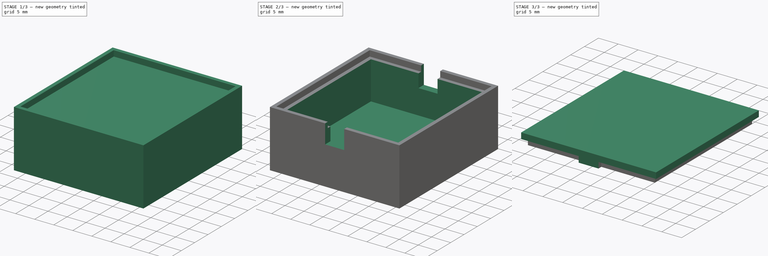
[diagram: build sequence overview — one tinted view per stage of 3, left to right]
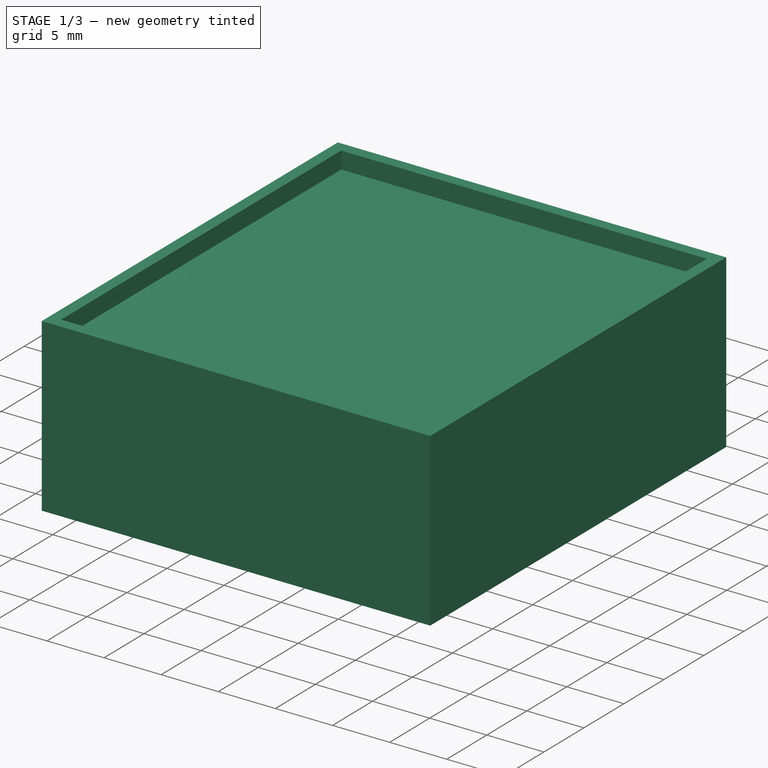
[diagram: stage 1 of 3 — iso view after this stage's code; geometry added in this stage tinted green]
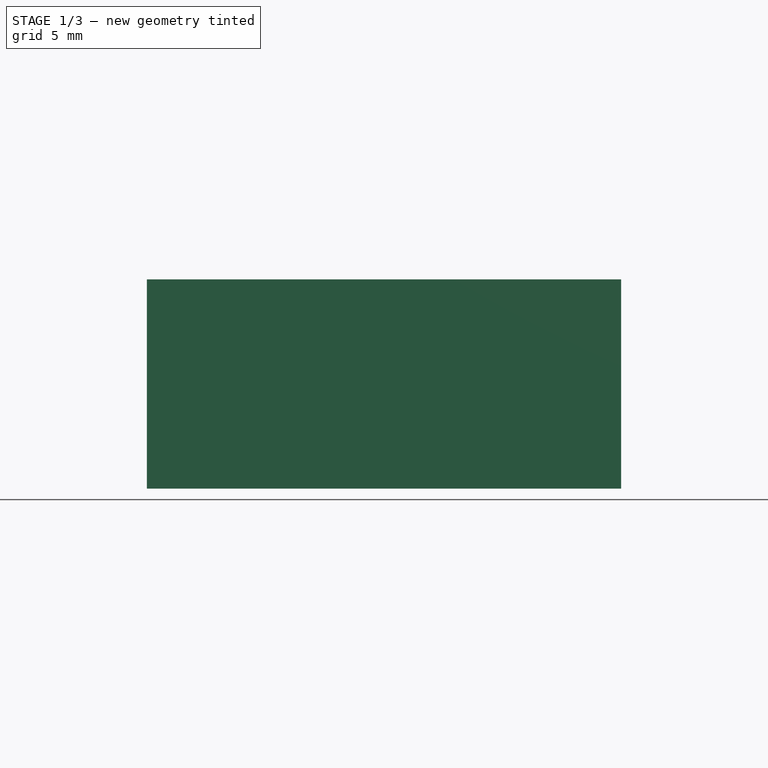
[diagram: stage 1 of 3 — front view after this stage's code; geometry added in this stage tinted green]
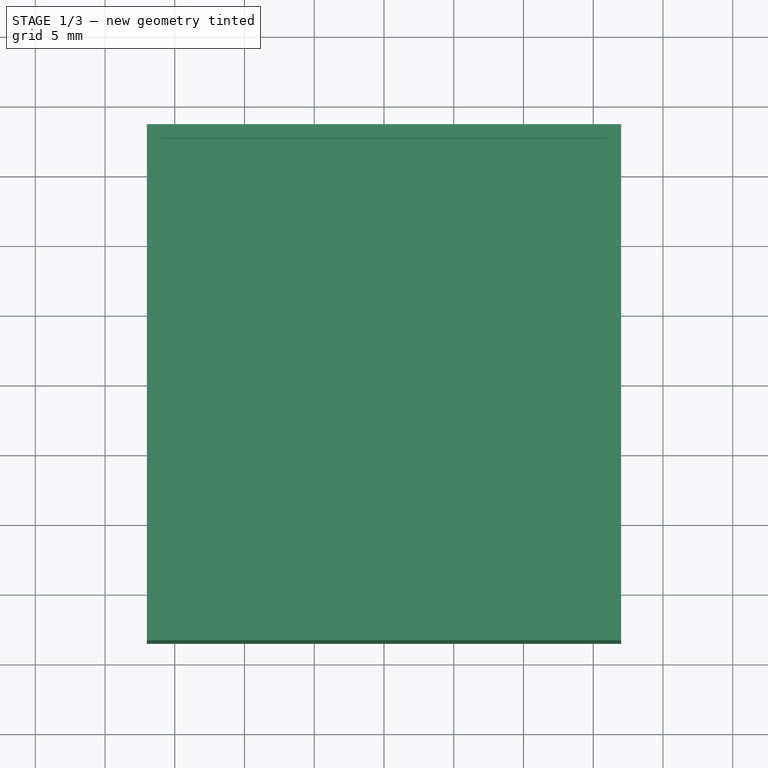
[diagram: stage 1 of 3 — top view after this stage's code; geometry added in this stage tinted green]
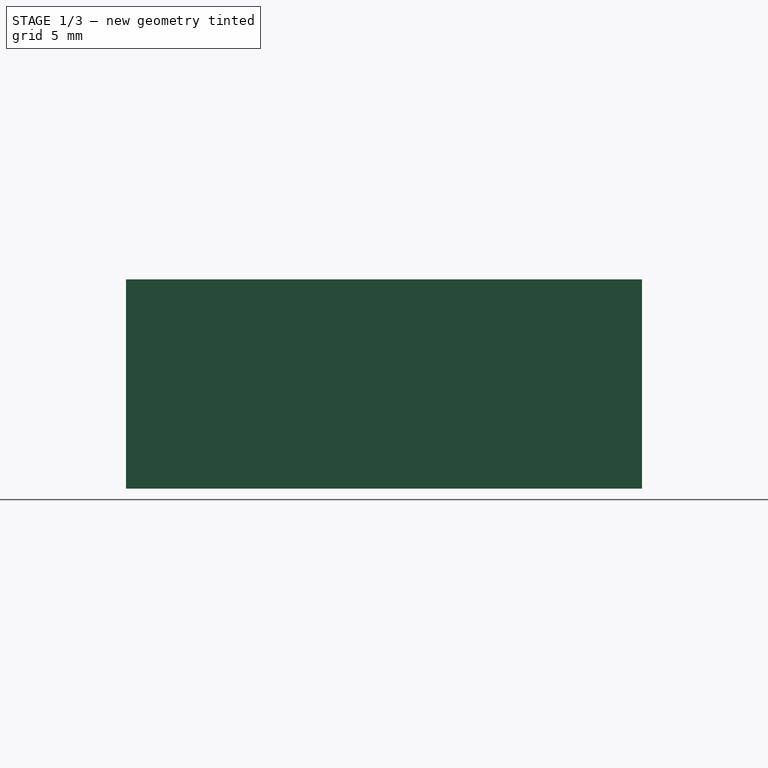
[diagram: stage 1 of 3 — right view after this stage's code; geometry added in this stage tinted green]
FCSTD DOCUMENT  (FreeCAD 0.16R)
Label: EspCase
License: All rights reserved
LicenseURL: http://en.wikipedia.org/wiki/All_rights_reserved
objects: Sketcher::SketchObject×5, PartDesign::Pocket×3, PartDesign::Pad×2, Part::Cut×1
note: 16 computed .brp shape members not serialized (recipe doc carries the construction recipe); baked Part::Feature solids carry a one-line shape summary decoded from their .brp

FEATURE [Sketcher::SketchObject] Sketch
  sketch-geometry (4):
    g0: LineSegment StartX=-17 StartY=18.5 StartZ=0 EndX=17 EndY=18.5 EndZ=0
    g1: LineSegment StartX=17 StartY=18.5 StartZ=0 EndX=17 EndY=-18.5 EndZ=0
    g2: LineSegment StartX=17 StartY=-18.5 StartZ=0 EndX=-17 EndY=-18.5 EndZ=0
    g3: LineSegment StartX=-17 StartY=-18.5 StartZ=0 EndX=-17 EndY=18.5 EndZ=0
  constraints (11):
    c: Coincident(g0,g1)
    c: Coincident(g1,g2)
    c: Coincident(g2,g3)
    c: Coincident(g3,g0)
    c: Horizontal(g0)
    c: Horizontal(g2)
    c: Vertical(g1)
    c: Vertical(g3)
    c: DistanceY(g1,g1) = 37
    c: DistanceX(g0,g0) = 34
    c: Symmetric(g0,g2,g-1)
FEATURE [PartDesign::Pad] Pad
  Length = 15
  Length2 = 100
  Sketch = -> Sketch
  Type = 0
FEATURE [Sketcher::SketchObject] Sketch001
  Placement = pos=(0,0,15) rot=(0,0,1;0rad)
  Support = -> Pad [Face6]
  sketch-geometry (4):
    g0: LineSegment StartX=-16 StartY=17.5 StartZ=0 EndX=16 EndY=17.5 EndZ=0
    g1: LineSegment StartX=16 StartY=17.5 StartZ=0 EndX=16 EndY=-17.5 EndZ=0
    g2: LineSegment StartX=16 StartY=-17.5 StartZ=0 EndX=-16 EndY=-17.5 EndZ=0
    g3: LineSegment StartX=-16 StartY=-17.5 StartZ=0 EndX=-16 EndY=17.5 EndZ=0
  constraints (11):
    c: Coincident(g0,g1)
    c: Coincident(g1,g2)
    c: Coincident(g2,g3)
    c: Coincident(g3,g0)
    c: Horizontal(g0)
    c: Horizontal(g2)
    c: Vertical(g1)
    c: Vertical(g3)
    c: DistanceX(g0,g0) = 32
    c: DistanceY(g3,g3) = 35
    c: Symmetric(g2,g0,g-1)
FEATURE [PartDesign::Pocket] Pocket
  Length = 1.5
  Sketch = -> Sketch001
  Type = 0
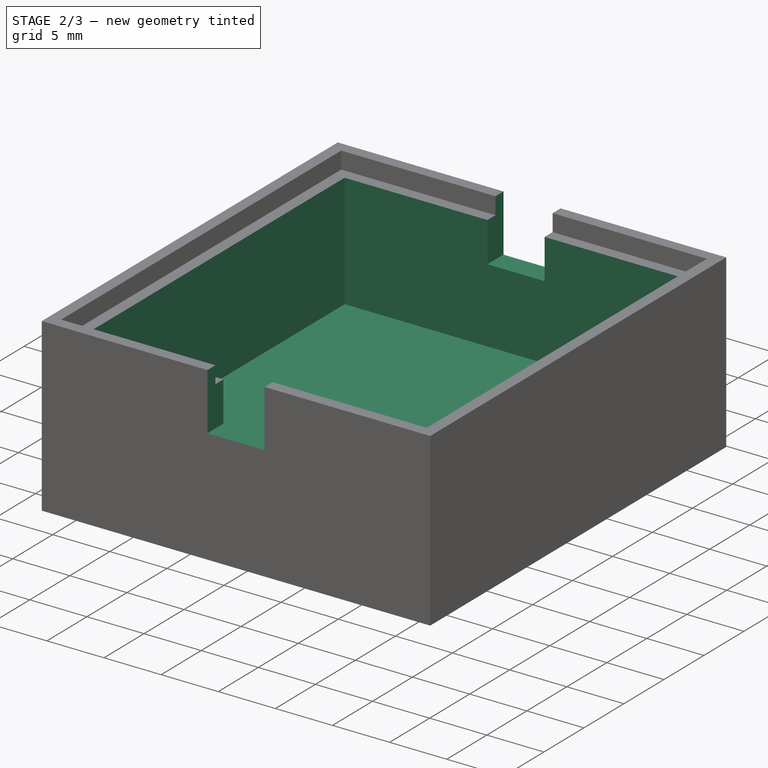
[diagram: stage 2 of 3 — iso view after this stage's code; geometry added in this stage tinted green]
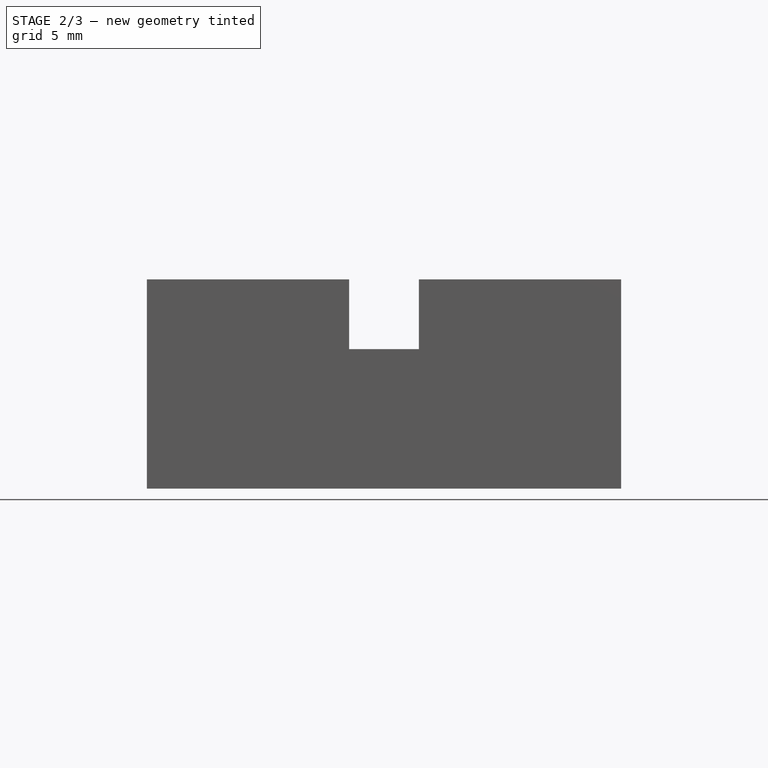
[diagram: stage 2 of 3 — front view after this stage's code; geometry added in this stage tinted green]
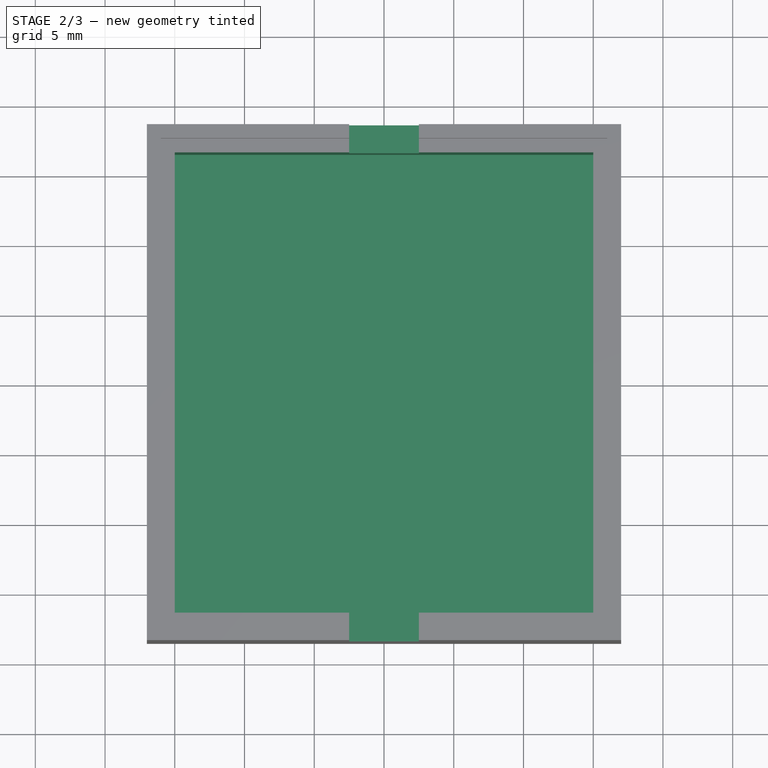
[diagram: stage 2 of 3 — top view after this stage's code; geometry added in this stage tinted green]
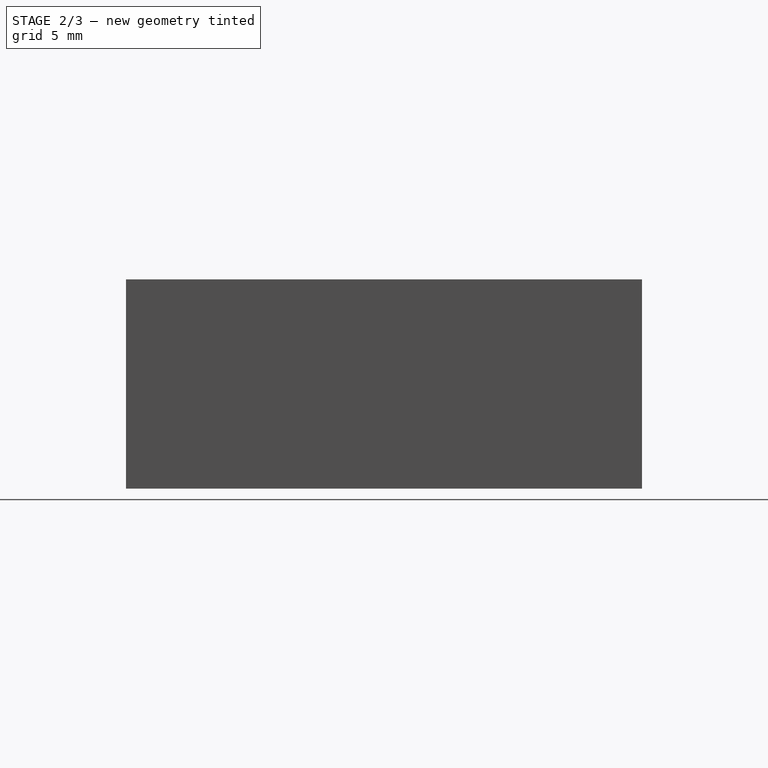
[diagram: stage 2 of 3 — right view after this stage's code; geometry added in this stage tinted green]
FEATURE [Sketcher::SketchObject] Sketch002
  Placement = pos=(0,0,13.5) rot=(0,0,1;0rad)
  Support = -> Pocket [Face11]
  sketch-geometry (4):
    g0: LineSegment StartX=-15 StartY=16.5 StartZ=0 EndX=15 EndY=16.5 EndZ=0
    g1: LineSegment StartX=15 StartY=16.5 StartZ=0 EndX=15 EndY=-16.5 EndZ=0
    g2: LineSegment StartX=15 StartY=-16.5 StartZ=0 EndX=-15 EndY=-16.5 EndZ=0
    g3: LineSegment StartX=-15 StartY=-16.5 StartZ=0 EndX=-15 EndY=16.5 EndZ=0
  constraints (11):
    c: Coincident(g0,g1)
    c: Coincident(g1,g2)
    c: Coincident(g2,g3)
    c: Coincident(g3,g0)
    c: Horizontal(g0)
    c: Horizontal(g2)
    c: Vertical(g1)
    c: Vertical(g3)
    c: DistanceX(g0,g0) = 30
    c: DistanceY(g3,g3) = 33
    c: Symmetric(g2,g0,g-1)
FEATURE [PartDesign::Pocket] Pocket001
  Length = 10
  Sketch = -> Sketch002
  Type = 0
FEATURE [Sketcher::SketchObject] Sketch003
  Placement = pos=(0,-18.5,0) rot=(1,0,0;1.5708rad)
  Support = -> Pocket001 [Face6]
  sketch-geometry (4):
    g0: LineSegment StartX=-2.5 StartY=15 StartZ=0 EndX=2.5 EndY=15 EndZ=0
    g1: LineSegment StartX=2.5 StartY=15 StartZ=0 EndX=2.5 EndY=10 EndZ=0
    g2: LineSegment StartX=2.5 StartY=10 StartZ=0 EndX=-2.5 EndY=10 EndZ=0
    g3: LineSegment StartX=-2.5 StartY=10 StartZ=0 EndX=-2.5 EndY=15 EndZ=0
  constraints (12):
    c: Coincident(g0,g1)
    c: Coincident(g1,g2)
    c: Coincident(g2,g3)
    c: Coincident(g3,g0)
    c: Horizontal(g0)
    c: Horizontal(g2)
    c: Vertical(g1)
    c: Vertical(g3)
    c: DistanceX(g0,g0) = 5
    c: DistanceY(g1,g1) = 5
    c: DistanceY(g-1,g0) = 15
    c: Symmetric(g2,g1,g-2)
FEATURE [PartDesign::Pocket] Pocket002
  Length = 300
  Sketch = -> Sketch003
  Type = 0
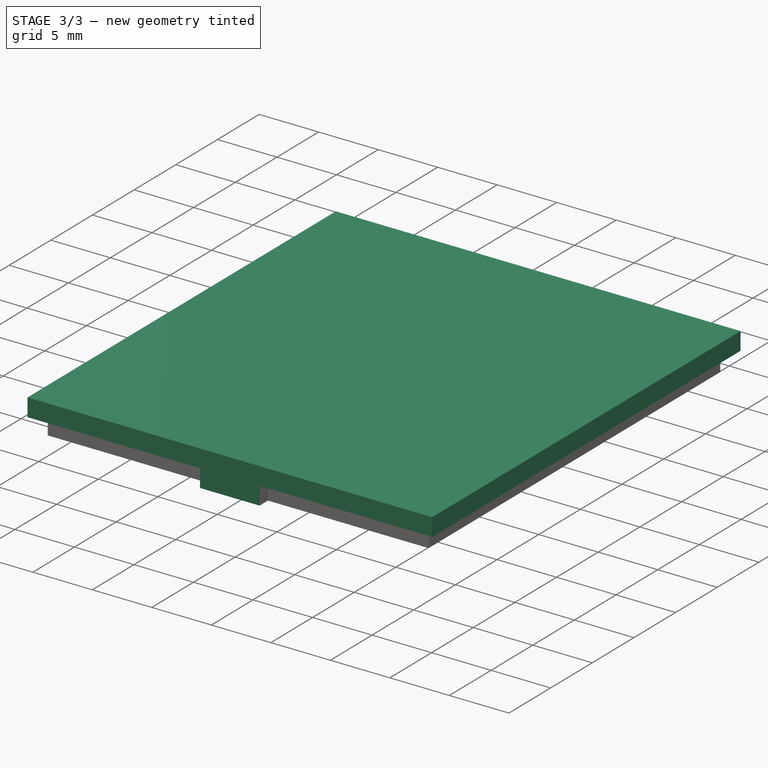
[diagram: stage 3 of 3 — iso view after this stage's code; geometry added in this stage tinted green]
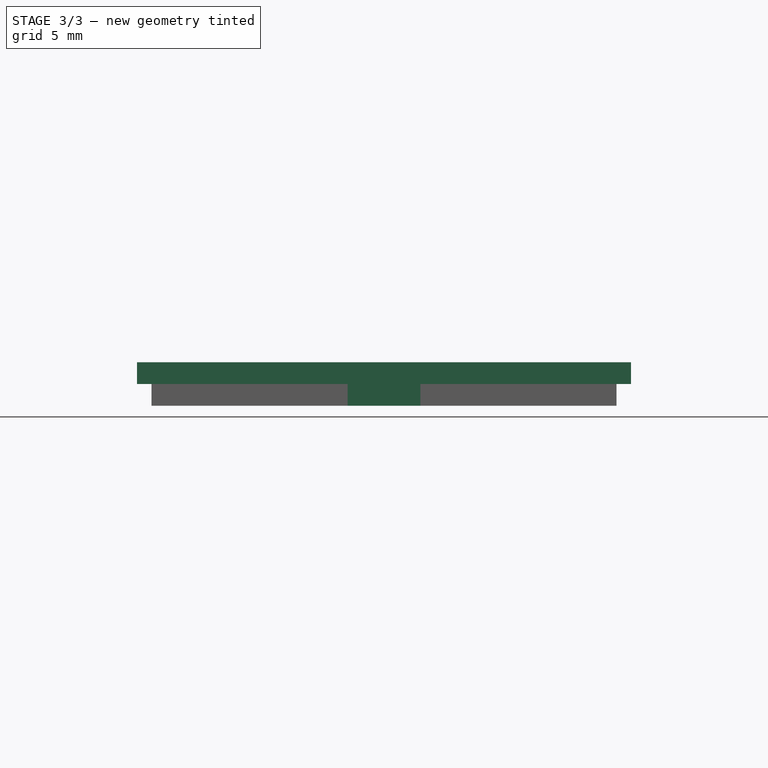
[diagram: stage 3 of 3 — front view after this stage's code; geometry added in this stage tinted green]
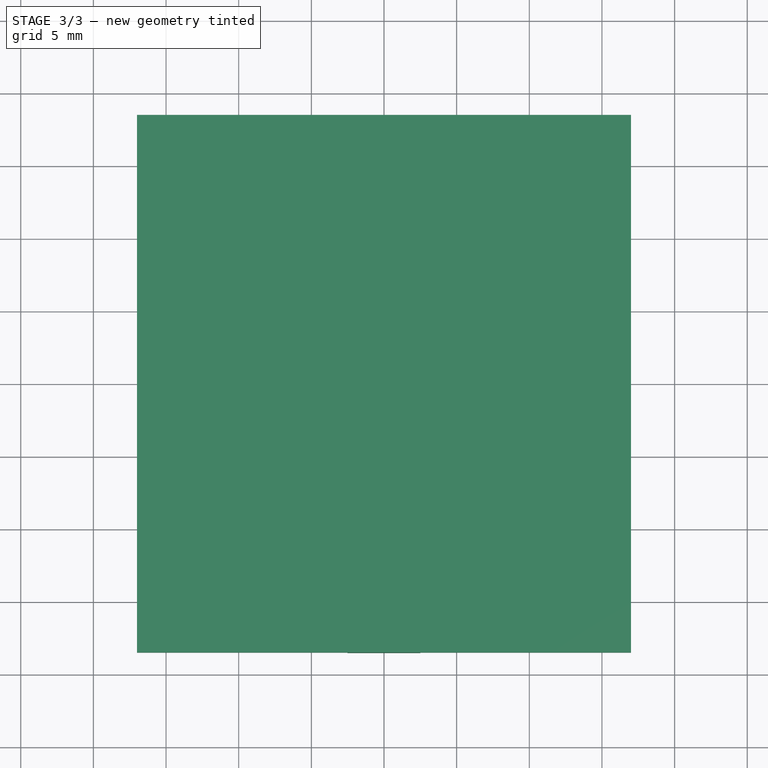
[diagram: stage 3 of 3 — top view after this stage's code; geometry added in this stage tinted green]
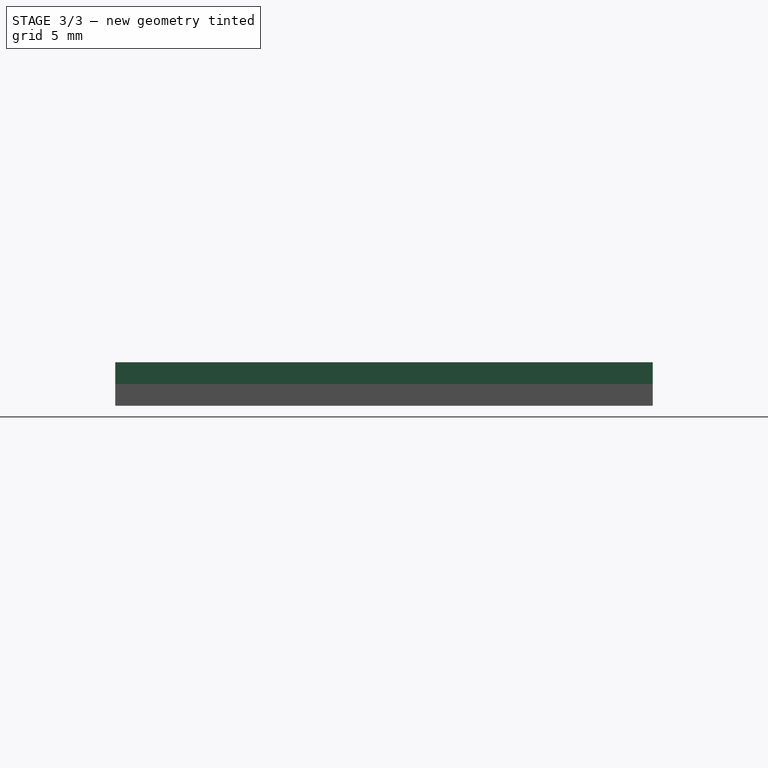
[diagram: stage 3 of 3 — right view after this stage's code; geometry added in this stage tinted green]
FEATURE [Sketcher::SketchObject] Sketch004
  Placement = pos=(0,0,15) rot=(0,0,1;0rad)
  Support = -> Pocket002 [Face8]
  sketch-geometry (4):
    g0: LineSegment StartX=-17 StartY=18.5 StartZ=0 EndX=17 EndY=18.5 EndZ=0
    g1: LineSegment StartX=17 StartY=18.5 StartZ=0 EndX=17 EndY=-18.5 EndZ=0
    g2: LineSegment StartX=17 StartY=-18.5 StartZ=0 EndX=-17 EndY=-18.5 EndZ=0
    g3: LineSegment StartX=-17 StartY=-18.5 StartZ=0 EndX=-17 EndY=18.5 EndZ=0
  constraints (11):
    c: Coincident(g0,g1)
    c: Coincident(g1,g2)
    c: Coincident(g2,g3)
    c: Coincident(g3,g0)
    c: Horizontal(g0)
    c: Horizontal(g2)
    c: Vertical(g1)
    c: Vertical(g3)
    c: DistanceY(g1,g1) = 37
    c: DistanceX(g2,g2) = 34
    c: Symmetric(g2,g0,g-1)
FEATURE [PartDesign::Pad] Pad001
  Length = 3
  Length2 = 100
  Midplane = true
  Reversed = true
  Sketch = -> Sketch004
  Type = 0
FEATURE [Part::Cut] Cut
  Base = -> Pad001
  Tool = -> Pocket002
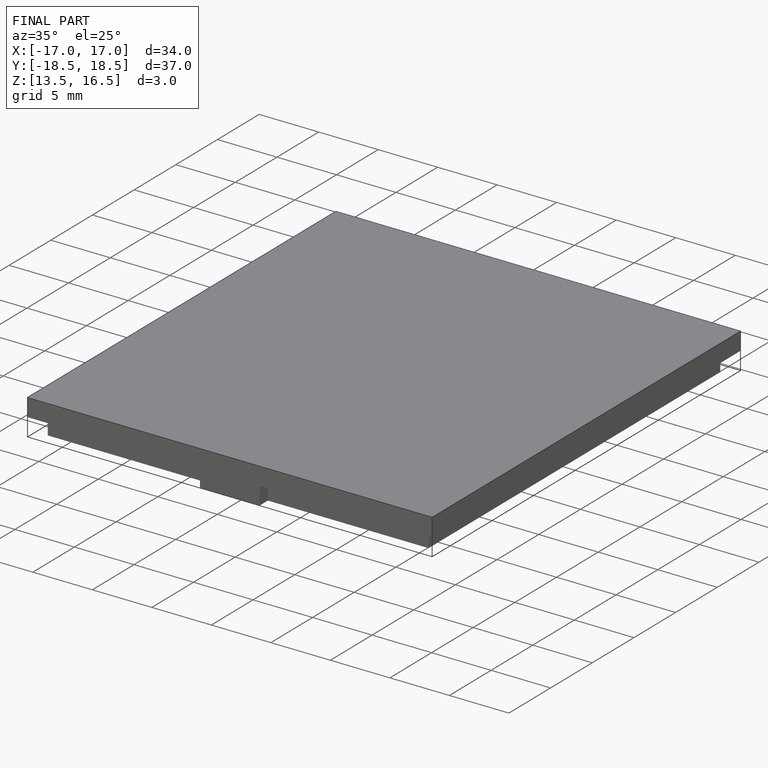
[diagram: finished part — iso view with bounding-box wireframe]
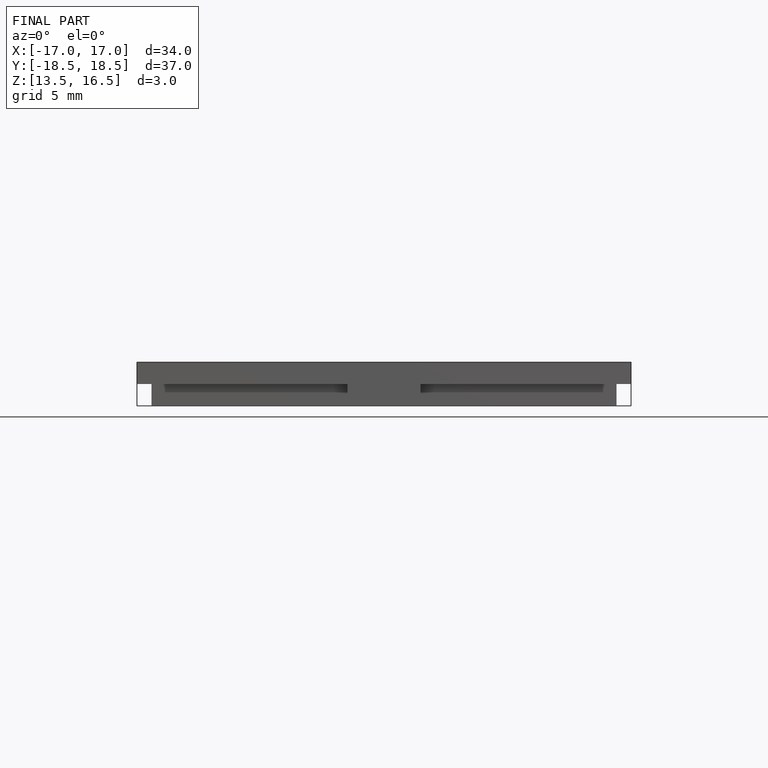
[diagram: finished part — front view with bounding-box wireframe]
